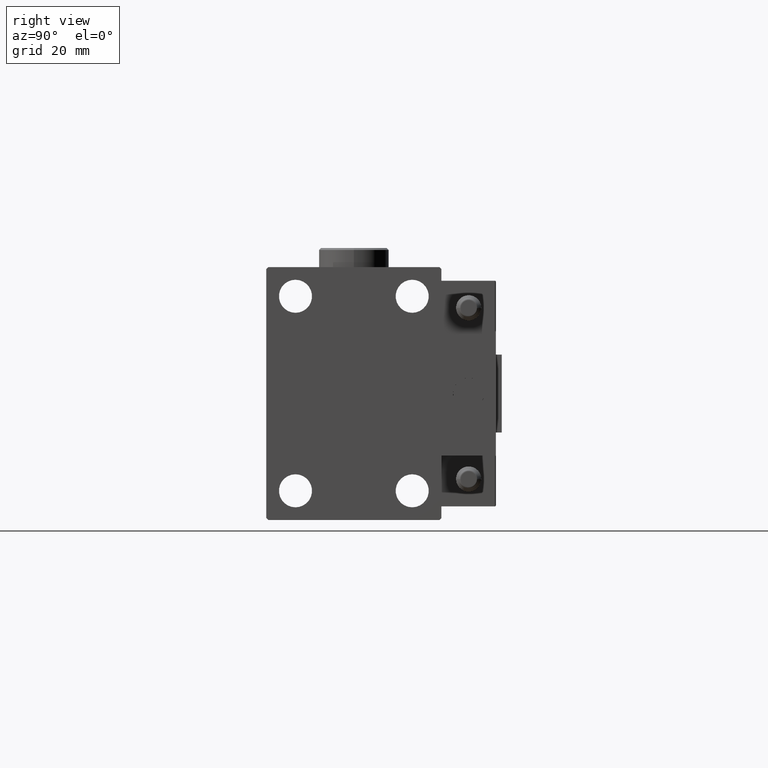
[diagram: clean part render]
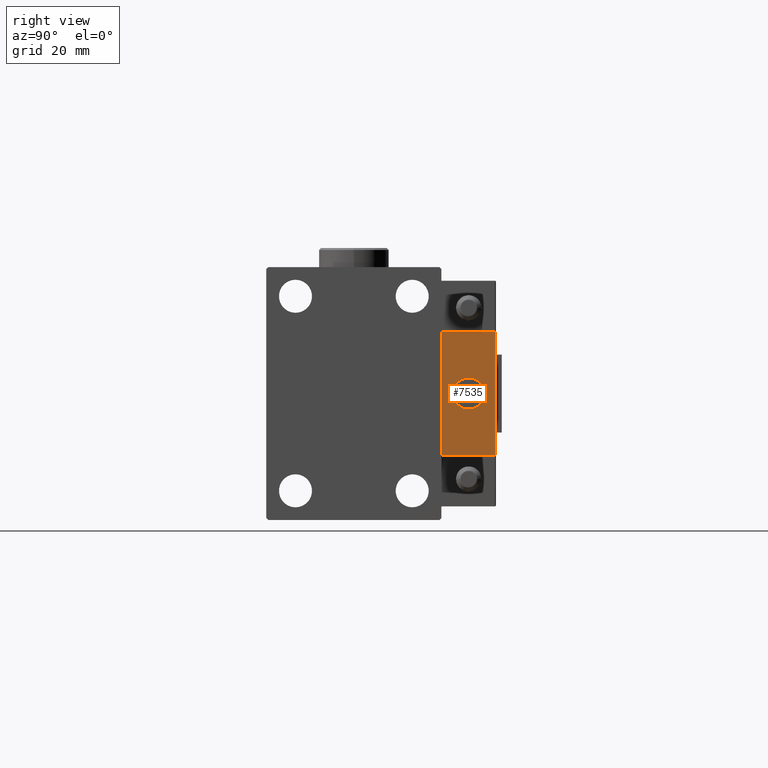
[diagram: same view with one face highlighted and labeled with its STEP entity id]
A machine part, right view. The second image highlights one B-rep face of the part: STEP entity #7535.
In plain terms, the highlighted planar face has unit normal (-1, 0, 0).
Its self-contained STEP definition (entity closure, byte-faithful):
#1501 = DIRECTION ( 'NONE',  ( -1.000000000000000000, 0.000000000000000000, 0.000000000000000000 ) ) ;
#2287 = EDGE_CURVE ( 'NONE', #3167, #15540, #20926, .T. ) ;
#2383 = VECTOR ( 'NONE', #24720, 1000.000000000000000 ) ;
#3155 = CARTESIAN_POINT ( 'NONE',  ( 10.00000000000000000, 7.000000000000000000, -16.00000000000000711 ) ) ;
#3167 = VERTEX_POINT ( 'NONE', #23256 ) ;
#3703 = ORIENTED_EDGE ( 'NONE', *, *, #28929, .T. ) ;
#4181 = PLANE ( 'NONE',  #17841 ) ;
#6217 = CARTESIAN_POINT ( 'NONE',  ( 10.00000000000000000, 0.000000000000000000, 0.000000000000000000 ) ) ;
#6493 = ORIENTED_EDGE ( 'NONE', *, *, #49125, .T. ) ;
#6582 = VECTOR ( 'NONE', #25737, 1000.000000000000000 ) ;
#7535 = ADVANCED_FACE ( 'NONE', ( #32718, #8913 ), #4181, .F. ) ;
#8215 = CARTESIAN_POINT ( 'NONE',  ( 10.00000000000000000, 7.000000000000000000, 15.99999999999999289 ) ) ;
#8913 = FACE_OUTER_BOUND ( 'NONE', #43184, .T. ) ;
#9403 = DIRECTION ( 'NONE',  ( -1.000000000000000000, 0.000000000000000000, 0.000000000000000000 ) ) ;
#9758 = LINE ( 'NONE', #17104, #6582 ) ;
#10948 = EDGE_LOOP ( 'NONE', ( #3703, #19793 ) ) ;
#11063 = VERTEX_POINT ( 'NONE', #3155 ) ;
#12145 = LINE ( 'NONE', #8215, #2383 ) ;
#14683 = EDGE_CURVE ( 'NONE', #37564, #34811, #47220, .T. ) ;
#15372 = ORIENTED_EDGE ( 'NONE', *, *, #2287, .T. ) ;
#15540 = VERTEX_POINT ( 'NONE', #45800 ) ;
#17104 = CARTESIAN_POINT ( 'NONE',  ( 10.00000000000000000, 7.000000000000000000, -16.00000000000000711 ) ) ;
#17841 = AXIS2_PLACEMENT_3D ( 'NONE', #20153, #40871, #36908 ) ;
#19793 = ORIENTED_EDGE ( 'NONE', *, *, #14683, .T. ) ;
#20153 = CARTESIAN_POINT ( 'NONE',  ( 10.00000000000000000, 0.000000000000000000, 0.000000000000000000 ) ) ;
#20854 = VERTEX_POINT ( 'NONE', #28793 ) ;
#20926 = LINE ( 'NONE', #36110, #38657 ) ;
#21424 = DIRECTION ( 'NONE',  ( 0.000000000000000000, 0.000000000000000000, 1.000000000000000000 ) ) ;
#21690 = DIRECTION ( 'NONE',  ( 0.000000000000000000, 0.000000000000000000, 1.000000000000000000 ) ) ;
#22527 = CIRCLE ( 'NONE', #46777, 4.000000000000000000 ) ;
#23256 = CARTESIAN_POINT ( 'NONE',  ( 10.00000000000000000, -7.000000000000000000, 15.99999999999999289 ) ) ;
#23836 = LINE ( 'NONE', #51863, #35314 ) ;
#24720 = DIRECTION ( 'NONE',  ( 0.000000000000000000, 0.000000000000000000, -1.000000000000000000 ) ) ;
#25737 = DIRECTION ( 'NONE',  ( 0.000000000000000000, -1.000000000000000000, 0.000000000000000000 ) ) ;
#26107 = CARTESIAN_POINT ( 'NONE',  ( 10.00000000000000000, 0.000000000000000000, 4.000000000000000000 ) ) ;
#27910 = EDGE_CURVE ( 'NONE', #11063, #15540, #9758, .T. ) ;
#28351 = EDGE_CURVE ( 'NONE', #20854, #11063, #12145, .T. ) ;
#28793 = CARTESIAN_POINT ( 'NONE',  ( 10.00000000000000000, 7.000000000000000000, 15.99999999999999289 ) ) ;
#28929 = EDGE_CURVE ( 'NONE', #34811, #37564, #22527, .T. ) ;
#31573 = ORIENTED_EDGE ( 'NONE', *, *, #28351, .F. ) ;
#32436 = ORIENTED_EDGE ( 'NONE', *, *, #27910, .F. ) ;
#32718 = FACE_BOUND ( 'NONE', #10948, .T. ) ;
#34811 = VERTEX_POINT ( 'NONE', #26107 ) ;
#35314 = VECTOR ( 'NONE', #43490, 1000.000000000000000 ) ;
#36110 = CARTESIAN_POINT ( 'NONE',  ( 10.00000000000000000, -7.000000000000000000, 15.99999999999999289 ) ) ;
#36893 = DIRECTION ( 'NONE',  ( 0.000000000000000000, 0.000000000000000000, -1.000000000000000000 ) ) ;
#36908 = DIRECTION ( 'NONE',  ( -0.000000000000000000, 0.000000000000000000, 1.000000000000000000 ) ) ;
#37564 = VERTEX_POINT ( 'NONE', #40642 ) ;
#38657 = VECTOR ( 'NONE', #36893, 1000.000000000000000 ) ;
#40642 = CARTESIAN_POINT ( 'NONE',  ( 10.00000000000000000, 4.898587196589412829E-16, -4.000000000000000000 ) ) ;
#40871 = DIRECTION ( 'NONE',  ( -1.000000000000000000, 0.000000000000000000, -0.000000000000000000 ) ) ;
#43184 = EDGE_LOOP ( 'NONE', ( #15372, #32436, #31573, #6493 ) ) ;
#43490 = DIRECTION ( 'NONE',  ( 0.000000000000000000, -1.000000000000000000, 0.000000000000000000 ) ) ;
#45286 = CARTESIAN_POINT ( 'NONE',  ( 10.00000000000000000, 0.000000000000000000, 0.000000000000000000 ) ) ;
#45594 = AXIS2_PLACEMENT_3D ( 'NONE', #6217, #1501, #21424 ) ;
#45800 = CARTESIAN_POINT ( 'NONE',  ( 10.00000000000000000, -7.000000000000000000, -16.00000000000000711 ) ) ;
#46777 = AXIS2_PLACEMENT_3D ( 'NONE', #45286, #9403, #21690 ) ;
#47220 = CIRCLE ( 'NONE', #45594, 4.000000000000000000 ) ;
#49125 = EDGE_CURVE ( 'NONE', #20854, #3167, #23836, .T. ) ;
#51863 = CARTESIAN_POINT ( 'NONE',  ( 10.00000000000000000, 7.000000000000000000, 15.99999999999999289 ) ) ;